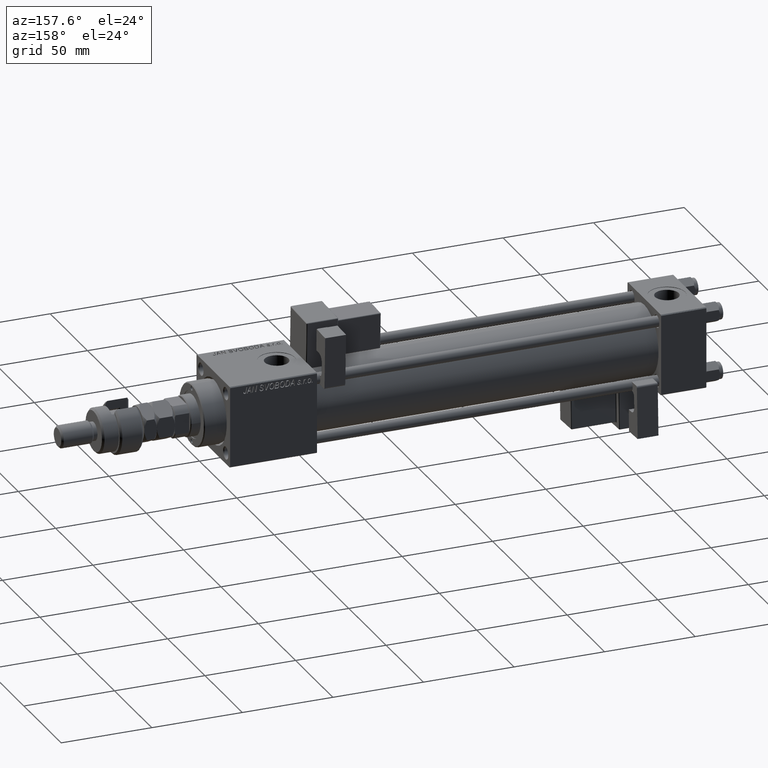
[diagram: clean part render]
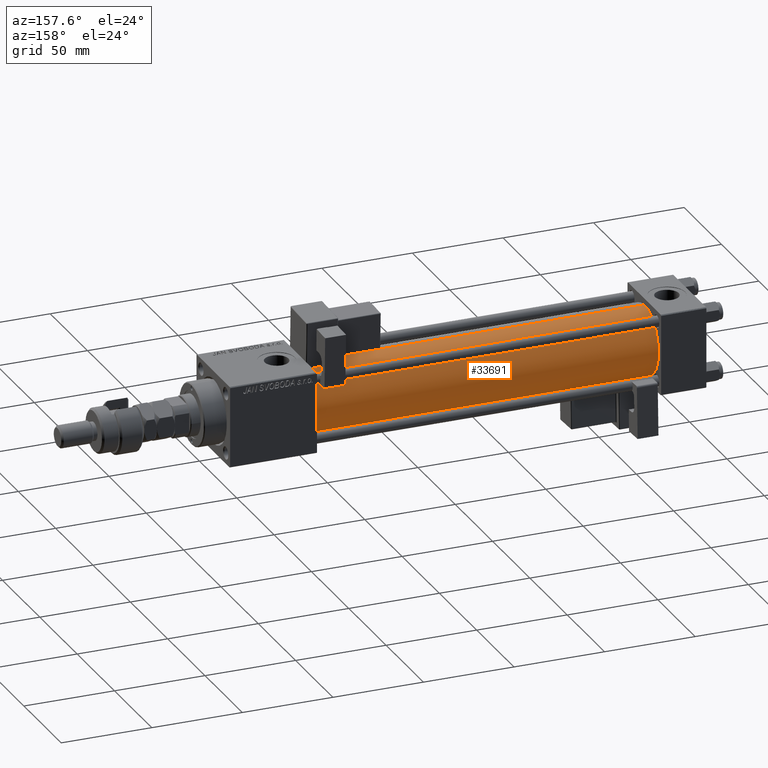
[diagram: same view with one face highlighted and labeled with its STEP entity id]
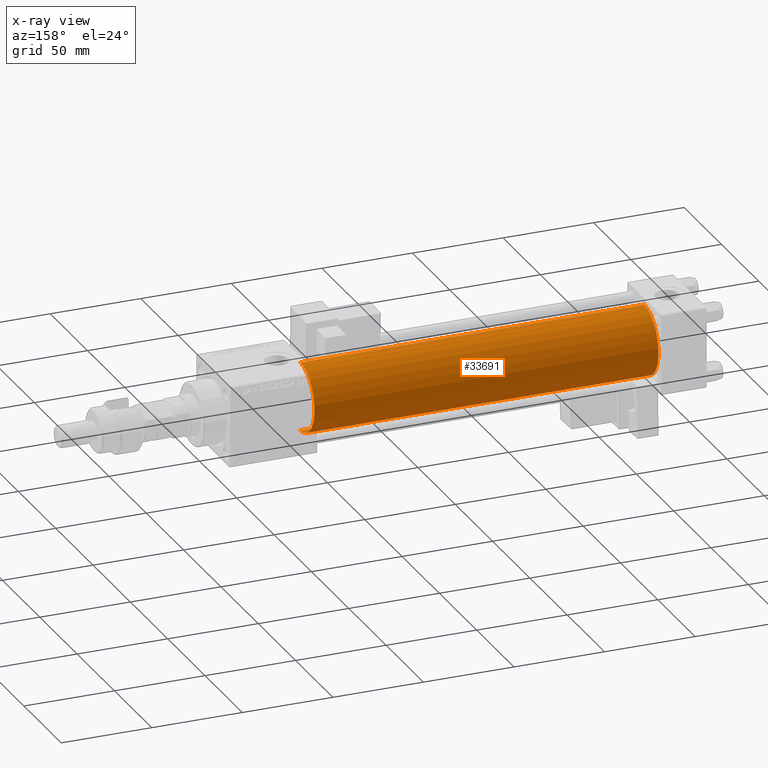
[diagram: x-ray of the same camera — body ghosted, the highlighted face saturated]
A machine part, auxiliary view. The second image highlights one B-rep face of the part: STEP entity #33691.
The next image is the same camera in x-ray: the body ghosted, the highlighted face saturated — about 0% of this face is hidden behind the body in this view.
In plain terms, the highlighted cylindrical surface (partial cylindrical patch) has radius 19 mm, axis along (-1, -0, -0).
Its self-contained STEP definition (entity closure, byte-faithful):
#54 = EDGE_CURVE ( 'NONE', #33568, #1809, #29223, .T. ) ;
#437 = ORIENTED_EDGE ( 'NONE', *, *, #51637, .T. ) ;
#1732 = CIRCLE ( 'NONE', #5293, 19.00000000000000000 ) ;
#1809 = VERTEX_POINT ( 'NONE', #15070 ) ;
#3972 = ORIENTED_EDGE ( 'NONE', *, *, #7043, .F. ) ;
#5293 = AXIS2_PLACEMENT_3D ( 'NONE', #11693, #28772, #37472 ) ;
#6494 = AXIS2_PLACEMENT_3D ( 'NONE', #50470, #49366, #11503 ) ;
#7027 = CYLINDRICAL_SURFACE ( 'NONE', #6494, 19.00000000000000000 ) ;
#7043 = EDGE_CURVE ( 'NONE', #47233, #33568, #25958, .T. ) ;
#7212 = LINE ( 'NONE', #10857, #45379 ) ;
#10857 = CARTESIAN_POINT ( 'NONE',  ( 215.0000000000000000, -2.752562955852396712E-16, -19.00000000000000000 ) ) ;
#11503 = DIRECTION ( 'NONE',  ( 0.000000000000000000, 0.000000000000000000, 1.000000000000000000 ) ) ;
#11627 = CARTESIAN_POINT ( 'NONE',  ( 215.0000000000000000, -2.602085213965210642E-15, 0.000000000000000000 ) ) ;
#11693 = CARTESIAN_POINT ( 'NONE',  ( 24.99999999999999289, -2.602085213965210642E-15, 0.000000000000000000 ) ) ;
#12876 = ORIENTED_EDGE ( 'NONE', *, *, #47703, .T. ) ;
#15070 = CARTESIAN_POINT ( 'NONE',  ( 24.99999999999999289, -2.602085213965210642E-15, 19.00000000000000000 ) ) ;
#18330 = EDGE_LOOP ( 'NONE', ( #3972, #12876, #437, #25652 ) ) ;
#19482 = DIRECTION ( 'NONE',  ( 0.000000000000000000, 0.000000000000000000, -1.000000000000000000 ) ) ;
#20844 = DIRECTION ( 'NONE',  ( -1.000000000000000000, -0.000000000000000000, -0.000000000000000000 ) ) ;
#21390 = CARTESIAN_POINT ( 'NONE',  ( 215.0000000000000000, -2.602085213965210642E-15, 19.00000000000000000 ) ) ;
#22975 = CARTESIAN_POINT ( 'NONE',  ( 215.0000000000000000, -2.752562955852396712E-16, -19.00000000000000000 ) ) ;
#25652 = ORIENTED_EDGE ( 'NONE', *, *, #54, .F. ) ;
#25958 = CIRCLE ( 'NONE', #46586, 19.00000000000000000 ) ;
#28772 = DIRECTION ( 'NONE',  ( 1.000000000000000000, -0.000000000000000000, 0.000000000000000000 ) ) ;
#29223 = LINE ( 'NONE', #21390, #40900 ) ;
#30917 = CARTESIAN_POINT ( 'NONE',  ( 24.99999999999999289, -2.752562955852396712E-16, -19.00000000000000000 ) ) ;
#32698 = DIRECTION ( 'NONE',  ( -1.000000000000000000, -0.000000000000000000, -0.000000000000000000 ) ) ;
#33072 = FACE_OUTER_BOUND ( 'NONE', #18330, .T. ) ;
#33216 = VERTEX_POINT ( 'NONE', #30917 ) ;
#33568 = VERTEX_POINT ( 'NONE', #39284 ) ;
#33691 = ADVANCED_FACE ( 'NONE', ( #33072 ), #7027, .T. ) ;
#37405 = DIRECTION ( 'NONE',  ( 1.000000000000000000, 0.000000000000000000, 0.000000000000000000 ) ) ;
#37472 = DIRECTION ( 'NONE',  ( 0.000000000000000000, 0.000000000000000000, 1.000000000000000000 ) ) ;
#39284 = CARTESIAN_POINT ( 'NONE',  ( 215.0000000000000000, -2.602085213965210642E-15, 19.00000000000000000 ) ) ;
#40900 = VECTOR ( 'NONE', #20844, 1000.000000000000000 ) ;
#45379 = VECTOR ( 'NONE', #32698, 1000.000000000000000 ) ;
#46586 = AXIS2_PLACEMENT_3D ( 'NONE', #11627, #37405, #19482 ) ;
#47233 = VERTEX_POINT ( 'NONE', #22975 ) ;
#47703 = EDGE_CURVE ( 'NONE', #47233, #33216, #7212, .T. ) ;
#49366 = DIRECTION ( 'NONE',  ( -1.000000000000000000, -0.000000000000000000, -0.000000000000000000 ) ) ;
#50470 = CARTESIAN_POINT ( 'NONE',  ( 215.0000000000000000, -2.602085213965210642E-15, 0.000000000000000000 ) ) ;
#51637 = EDGE_CURVE ( 'NONE', #33216, #1809, #1732, .T. ) ;